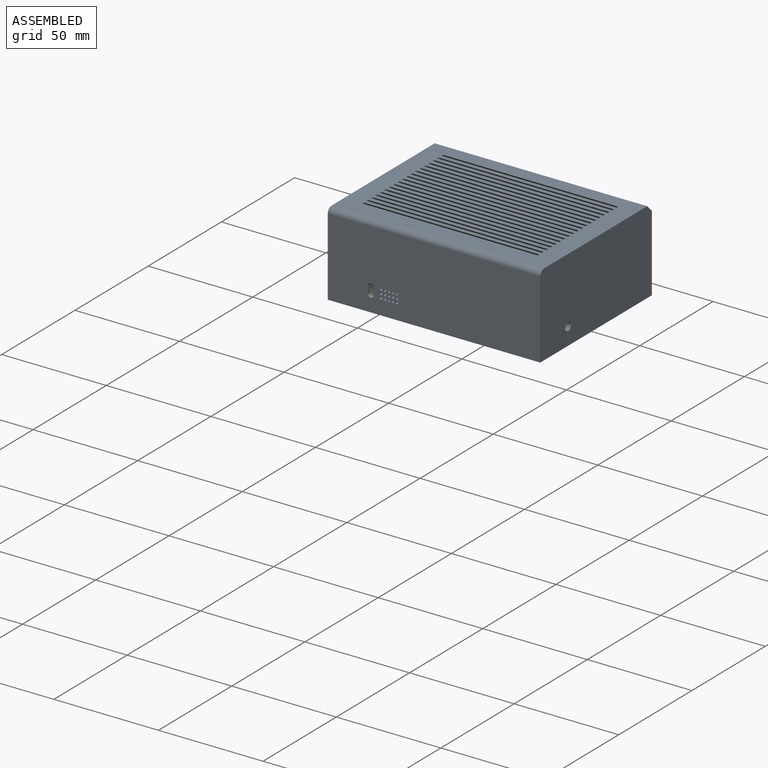
[diagram: assembled view]
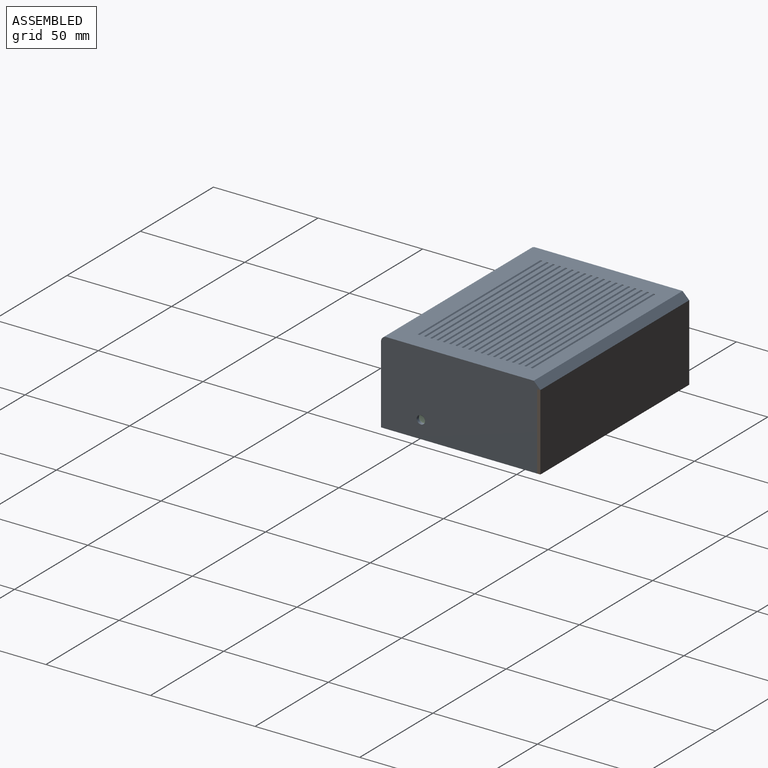
[diagram: assembled view, second angle]
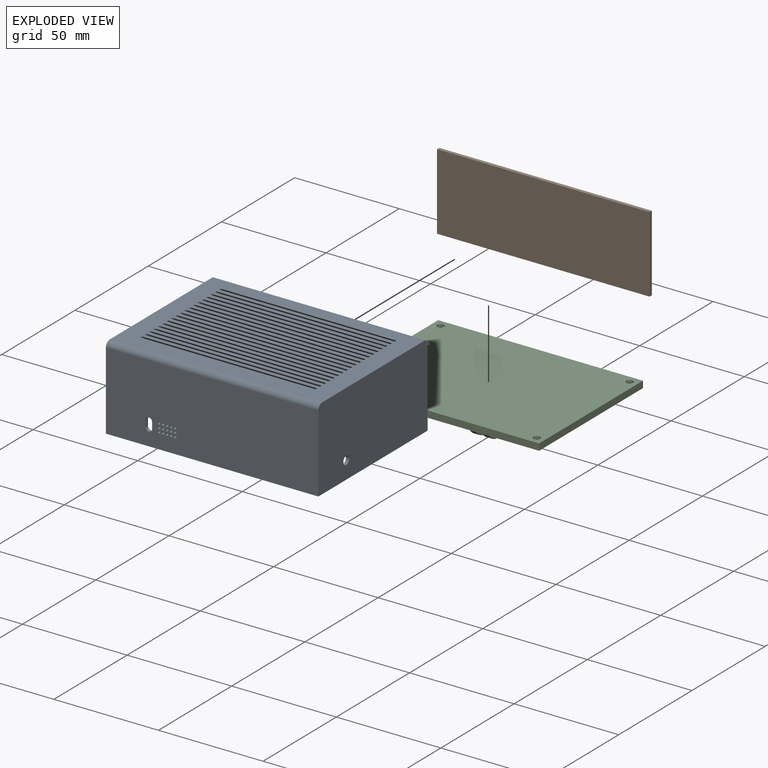
[diagram: exploded view]
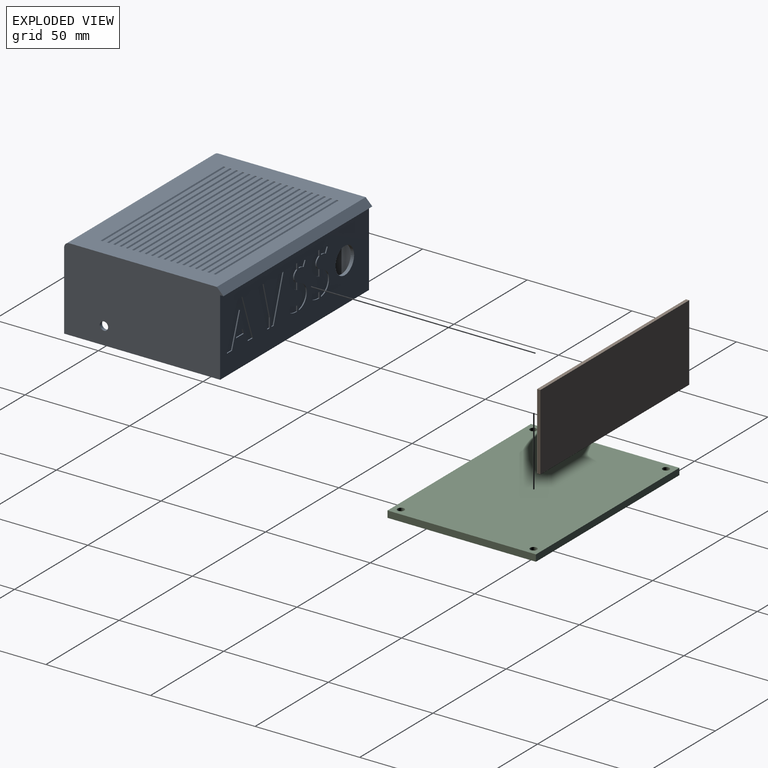
[diagram: exploded view, second angle]
ASSEMBLY  parts=3 mates=6
PART A: 268 faces, bbox 101.6x76.2x39.7 mm
  f0: plane 98.43x36.51mm, normal (0,-1,0), area 3033.7mm2, adj f1,f3,f4,f10,f11,f237,f239,f249
  f1: plane 98.43x71.44mm, normal (0,0,-1), area 5250.4mm2, adj f0,f2,f3,f4,f18,f19,f20,f21
  f2: plane 98.43x36.51mm, normal (0,1,0), area 3124.8mm2, adj f1,f3,f4,f10,f14,f15,f16,f17
  f3: plane 71.44x36.51mm, normal (-1,0,0), area 2162.4mm2, adj f0,f1,f2,f10,f13,f241,f245,f248
  f4: plane 71.44x36.51mm, normal (1,0,0), area 2175mm2, adj f0,f1,f2,f10,f230,f233,f235,f239
  f5: plane 101.6x36.51mm, normal (0,1,0), area 3103mm2, adj f6,f7,f10,f11,f12,f96,f97,f98
  f6: plane 76.2x39.69mm, normal (-1,0,0), area 2959.8mm2, adj f5,f8,f9,f10,f12,f94,f95
  f7: plane 76.2x39.69mm, normal (1,0,0), area 2947.2mm2, adj f5,f8,f9,f10,f12,f13,f94,f95
  f8: plane 101.6x70.49mm, normal (0,0,1), area 5568.7mm2, adj f6,f7,f18,f19,f20,f21,f22,f23
  f9: plane 101.6x37.15mm, normal (0,-1,0), area 3738.6mm2, adj f6,f7,f10,f14,f15,f16,f17,f94
  f10: plane 101.6x74.61mm, normal (0,0,-1), area 549.4mm2, adj f0,f2,f3,f4,f5,f6,f7,f9
  f11: cylinder r=6.35mm len=12.7mm, axis (0,1,0), area 63.3mm2, adj f0,f5
  f12: plane 101.6x1.59mm, normal (0,0,-1), area 161.3mm2, adj f5,f6,f7,f95
  f13: cylinder r=2mm len=4mm, axis (1,0,0), area 19.9mm2, adj f3,f7
  f14: plane 3.05x1.59mm, normal (-1,0,0), area 4.8mm2, adj f2,f9,f15,f17
  f15: cylinder r=1.52mm len=3.05mm, axis (0,-1,0), area 7.6mm2, adj f2,f9,f14,f16
  f16: plane 3.05x1.59mm, normal (1,0,0), area 4.8mm2, adj f2,f9,f15,f17
  f17: cylinder r=1.52mm len=3.05mm, axis (0,-1,0), area 7.6mm2, adj f2,f9,f14,f16
  f18: plane 83.82x3.18mm, normal (0,0.71,0.71), area 376.4mm2, adj f1,f8,f20,f21
  f19: plane 83.82x3.18mm, normal (0,-0.71,-0.71), area 376.4mm2, adj f1,f8,f20,f21
  f20: plane 4.18x3.18mm, normal (1,0,0), area 3.2mm2, adj f1,f8,f18,f19
  f21: plane 4.18x3.18mm, normal (-1,0,0), area 3.2mm2, adj f1,f8,f18,f19
  f22: plane 83.82x3.18mm, normal (0,0.71,0.71), area 376.4mm2, adj f1,f8,f24,f25
  f23: plane 83.82x3.18mm, normal (0,-0.71,-0.71), area 376.4mm2, adj f1,f8,f24,f25
  f24: plane 4.18x3.18mm, normal (1,0,0), area 3.2mm2, adj f1,f8,f22,f23
  f25: plane 4.18x3.18mm, normal (-1,0,0), area 3.2mm2, adj f1,f8,f22,f23
  f26: plane 83.82x3.18mm, normal (0,0.71,0.71), area 376.4mm2, adj f1,f8,f28,f29
  f27: plane 83.82x3.18mm, normal (0,-0.71,-0.71), area 376.4mm2, adj f1,f8,f28,f29
  f28: plane 4.18x3.18mm, normal (1,0,0), area 3.2mm2, adj f1,f8,f26,f27
  f29: plane 4.18x3.18mm, normal (-1,0,0), area 3.2mm2, adj f1,f8,f26,f27
  f30: plane 83.82x3.18mm, normal (0,0.71,0.71), area 376.4mm2, adj f1,f8,f32,f33
  f31: plane 83.82x3.18mm, normal (0,-0.71,-0.71), area 376.4mm2, adj f1,f8,f32,f33
  f32: plane 4.18x3.18mm, normal (1,0,0), area 3.2mm2, adj f1,f8,f30,f31
  f33: plane 4.18x3.18mm, normal (-1,0,0), area 3.2mm2, adj f1,f8,f30,f31
  f34: plane 83.82x3.18mm, normal (0,0.71,0.71), area 376.4mm2, adj f1,f8,f36,f37
  f35: plane 83.82x3.18mm, normal (0,-0.71,-0.71), area 376.4mm2, adj f1,f8,f36,f37
  f36: plane 4.18x3.18mm, normal (1,0,0), area 3.2mm2, adj f1,f8,f34,f35
  f37: plane 4.18x3.18mm, normal (-1,0,0), area 3.2mm2, adj f1,f8,f34,f35
  f38: plane 83.82x3.18mm, normal (0,0.71,0.71), area 376.4mm2, adj f1,f8,f40,f41
  f39: plane 83.82x3.18mm, normal (0,-0.71,-0.71), area 376.4mm2, adj f1,f8,f40,f41
  f40: plane 4.18x3.18mm, normal (1,0,0), area 3.2mm2, adj f1,f8,f38,f39
  f41: plane 4.18x3.18mm, normal (-1,0,0), area 3.2mm2, adj f1,f8,f38,f39
  f42: plane 83.82x3.18mm, normal (0,0.71,0.71), area 376.4mm2, adj f1,f8,f44,f45
  f43: plane 83.82x3.18mm, normal (0,-0.71,-0.71), area 376.4mm2, adj f1,f8,f44,f45
  f44: plane 4.18x3.18mm, normal (1,0,0), area 3.2mm2, adj f1,f8,f42,f43
  f45: plane 4.18x3.18mm, normal (-1,0,0), area 3.2mm2, adj f1,f8,f42,f43
  f46: plane 83.82x3.18mm, normal (0,0.71,0.71), area 376.4mm2, adj f1,f8,f48,f49
  f47: plane 83.82x3.18mm, normal (0,-0.71,-0.71), area 376.4mm2, adj f1,f8,f48,f49
  f48: plane 4.18x3.18mm, normal (1,0,0), area 3.2mm2, adj f1,f8,f46,f47
  f49: plane 4.18x3.18mm, normal (-1,0,0), area 3.2mm2, adj f1,f8,f46,f47
  f50: plane 83.82x3.18mm, normal (0,0.71,0.71), area 376.4mm2, adj f1,f8,f52,f53
  f51: plane 83.82x3.18mm, normal (0,-0.71,-0.71), area 376.4mm2, adj f1,f8,f52,f53
  f52: plane 4.18x3.18mm, normal (1,0,0), area 3.2mm2, adj f1,f8,f50,f51
  f53: plane 4.18x3.18mm, normal (-1,0,0), area 3.2mm2, adj f1,f8,f50,f51
  f54: plane 83.82x3.18mm, normal (0,0.71,0.71), area 376.4mm2, adj f1,f8,f56,f57
  f55: plane 83.82x3.18mm, normal (0,-0.71,-0.71), area 376.4mm2, adj f1,f8,f56,f57
  f56: plane 4.18x3.18mm, normal (1,0,0), area 3.2mm2, adj f1,f8,f54,f55
  f57: plane 4.18x3.18mm, normal (-1,0,0), area 3.2mm2, adj f1,f8,f54,f55
  f58: plane 83.82x3.18mm, normal (0,0.71,0.71), area 376.4mm2, adj f1,f8,f60,f61
  f59: plane 83.82x3.18mm, normal (0,-0.71,-0.71), area 376.4mm2, adj f1,f8,f60,f61
  f60: plane 4.18x3.18mm, normal (1,0,0), area 3.2mm2, adj f1,f8,f58,f59
  f61: plane 4.18x3.18mm, normal (-1,0,0), area 3.2mm2, adj f1,f8,f58,f59
  f62: plane 83.82x3.18mm, normal (0,0.71,0.71), area 376.4mm2, adj f1,f8,f64,f65
  f63: plane 83.82x3.18mm, normal (0,-0.71,-0.71), area 376.4mm2, adj f1,f8,f64,f65
  f64: plane 4.18x3.18mm, normal (1,0,0), area 3.2mm2, adj f1,f8,f62,f63
  f65: plane 4.18x3.18mm, normal (-1,0,0), area 3.2mm2, adj f1,f8,f62,f63
  f66: plane 83.82x3.18mm, normal (0,0.71,0.71), area 376.4mm2, adj f1,f8,f68,f69
  f67: plane 83.82x3.18mm, normal (0,-0.71,-0.71), area 376.4mm2, adj f1,f8,f68,f69
  f68: plane 4.18x3.18mm, normal (1,0,0), area 3.2mm2, adj f1,f8,f66,f67
  f69: plane 4.18x3.18mm, normal (-1,0,0), area 3.2mm2, adj f1,f8,f66,f67
  f70: plane 83.82x3.18mm, normal (0,0.71,0.71), area 376.4mm2, adj f1,f8,f72,f73
  f71: plane 83.82x3.18mm, normal (0,-0.71,-0.71), area 376.4mm2, adj f1,f8,f72,f73
  f72: plane 4.18x3.18mm, normal (1,0,0), area 3.2mm2, adj f1,f8,f70,f71
  f73: plane 4.18x3.18mm, normal (-1,0,0), area 3.2mm2, adj f1,f8,f70,f71
  f74: plane 83.82x3.18mm, normal (0,0.71,0.71), area 376.4mm2, adj f1,f8,f76,f77
  f75: plane 83.82x3.18mm, normal (0,-0.71,-0.71), area 376.4mm2, adj f1,f8,f76,f77
  f76: plane 4.18x3.18mm, normal (1,0,0), area 3.2mm2, adj f1,f8,f74,f75
  f77: plane 4.18x3.18mm, normal (-1,0,0), area 3.2mm2, adj f1,f8,f74,f75
  f78: plane 83.82x3.18mm, normal (0,0.71,0.71), area 376.4mm2, adj f1,f8,f80,f81
  f79: plane 83.82x3.18mm, normal (0,-0.71,-0.71), area 376.4mm2, adj f1,f8,f80,f81
  f80: plane 4.18x3.18mm, normal (1,0,0), area 3.2mm2, adj f1,f8,f78,f79
  f81: plane 4.18x3.18mm, normal (-1,0,0), area 3.2mm2, adj f1,f8,f78,f79
  f82: plane 83.82x3.18mm, normal (0,0.71,0.71), area 376.4mm2, adj f1,f8,f84,f85
  f83: plane 83.82x3.18mm, normal (0,-0.71,-0.71), area 376.4mm2, adj f1,f8,f84,f85
  f84: plane 4.18x3.18mm, normal (1,0,0), area 3.2mm2, adj f1,f8,f82,f83
  f85: plane 4.18x3.18mm, normal (-1,0,0), area 3.2mm2, adj f1,f8,f82,f83
  f86: plane 83.82x3.18mm, normal (0,0.71,0.71), area 376.4mm2, adj f1,f8,f88,f89
  f87: plane 83.82x3.18mm, normal (0,-0.71,-0.71), area 376.4mm2, adj f1,f8,f88,f89
  f88: plane 4.18x3.18mm, normal (1,0,0), area 3.2mm2, adj f1,f8,f86,f87
  f89: plane 4.18x3.18mm, normal (-1,0,0), area 3.2mm2, adj f1,f8,f86,f87
  f90: plane 83.82x3.18mm, normal (0,0.71,0.71), area 376.4mm2, adj f1,f8,f92,f93
  f91: plane 83.82x3.18mm, normal (0,-0.71,-0.71), area 376.4mm2, adj f1,f8,f92,f93
  f92: plane 4.18x3.18mm, normal (1,0,0), area 3.2mm2, adj f1,f8,f90,f91
  f93: plane 4.18x3.18mm, normal (-1,0,0), area 3.2mm2, adj f1,f8,f90,f91
  f94: cylinder r=2.54mm len=101.6mm, axis (1,0,0), area 405.4mm2, adj f6,f7,f8,f9
  f95: plane 101.6x3.18mm, normal (0,0.71,0.71), area 456.2mm2, adj f6,f7,f8,f12
  f96: plane 20.6x7.17mm, normal (0.94,0,-0.33), area 10.9mm2, adj f5,f97,f102,f103
  f97: plane 3.33x0.5mm, normal (0,0,-1), area 1.7mm2, adj f5,f96,f98,f103
  f98: plane 20.6x7.22mm, normal (-0.94,0,-0.33), area 10.9mm2, adj f5,f97,f99,f103
  f99: plane 3.5x0.5mm, normal (0,0,1), area 1.7mm2, adj f5,f98,f100,f103
  f100: plane 15.45x5.4mm, normal (0.94,0,0.33), area 8.2mm2, adj f5,f99,f101,f103
  f101: plane 15.45x5.35mm, normal (-0.95,0,0.33), area 8.2mm2, adj f5,f100,f102,f103
  f102: plane 3.47x0.5mm, normal (0,0,1), area 1.7mm2, adj f5,f96,f101,f103
  f103: plane 20.6x17.72mm, normal (0,1,0), area 133.8mm2, adj f96,f97,f98,f99,f100,f101,f102
  f104: plane 3.28x0.5mm, normal (-1,0,0), area 1.6mm2, adj f5,f105,f116,f117
  f105: extruded ~1.65x1.2mm, area 1mm2, adj f5,f104,f106,f117
  f106: extruded ~1.62x0.64mm, area 0.9mm2, adj f5,f105,f107,f117
  f107: extruded ~3.05x2.29mm, area 2.1mm2, adj f5,f106,f108,f117
  f108: plane 2.69x0.5mm, normal (-1,0,0), area 1.3mm2, adj f5,f107,f109,f117
  f109: extruded ~2.29x0.7mm, area 1.2mm2, adj f5,f108,f110,f117
  f110: extruded ~1.7x1.3mm, area 1.1mm2, adj f5,f109,f111,f117
  f111: extruded ~1.72x1.06mm, area 1mm2, adj f5,f110,f112,f117
  f112: extruded ~1.96x0.5mm, area 1mm2, adj f5,f111,f113,f117
  f113: extruded ~2.43x0.5mm, area 1.3mm2, adj f5,f112,f114,f117
  f114: extruded ~1.66x1.29mm, area 1.1mm2, adj f5,f113,f115,f117
  f115: extruded ~1.75x1.16mm, area 1.1mm2, adj f5,f114,f116,f117
  f116: extruded ~1.89x0.9mm, area 1mm2, adj f5,f104,f115,f117
  f117: plane 11.84x5.43mm, normal (0,1,0), area 37.9mm2, adj f104,f105,f106,f107,f108,f109,f110,f111
  f118: plane 2.41x0.59mm, normal (-0.97,0,-0.24), area 1.2mm2, adj f5,f119,f129,f130
  f119: extruded ~1.14x0.71mm, area 0.7mm2, adj f5,f118,f120,f130
  f120: extruded ~1.38x0.5mm, area 0.7mm2, adj f5,f119,f121,f130
  f121: extruded ~1.44x0.5mm, area 0.7mm2, adj f5,f120,f122,f130
  f122: extruded ~1.39x0.5mm, area 0.7mm2, adj f5,f121,f123,f130
  f123: plane 0.5x0.06mm, normal (0,0,1), area 0mm2, adj f5,f122,f124,f130
  f124: plane 2.66x0.5mm, normal (1,0,0), area 1.3mm2, adj f5,f123,f125,f130
  f125: plane 0.5x0.09mm, normal (0,0,-1), area 0mm2, adj f5,f124,f126,f130
  f126: extruded ~1.2x0.5mm, area 0.6mm2, adj f5,f125,f127,f130
  f127: extruded ~1.29x0.5mm, area 0.7mm2, adj f5,f126,f128,f130
  f128: extruded ~1.25x0.5mm, area 0.7mm2, adj f5,f127,f129,f130
  f129: extruded ~0.99x0.5mm, area 0.5mm2, adj f5,f118,f128,f130
  f130: plane 5.41x3.89mm, normal (0,1,0), area 14.3mm2, adj f118,f119,f120,f121,f122,f123,f124,f125
  f131: extruded ~2.21x0.5mm, area 1.1mm2, adj f5,f132,f144,f145
  f132: extruded ~1.62x1.25mm, area 1mm2, adj f5,f131,f133,f145
  f133: extruded ~1.68x1.22mm, area 1mm2, adj f5,f132,f134,f145
  f134: extruded ~1.85x0.97mm, area 1mm2, adj f5,f133,f135,f145
  f135: plane 3.19x0.5mm, normal (1,0,0), area 1.6mm2, adj f5,f134,f136,f145
  f136: extruded ~1.48x1.17mm, area 1mm2, adj f5,f135,f137,f145
  f137: extruded ~1.76x0.59mm, area 1mm2, adj f5,f136,f138,f145
  f138: extruded ~1.55x0.59mm, area 0.8mm2, adj f5,f137,f139,f145
  f139: extruded ~1.48x1.08mm, area 0.9mm2, adj f5,f138,f140,f145
  f140: plane 2.94x0.5mm, normal (1,0,0), area 1.5mm2, adj f5,f139,f141,f145
  f141: extruded ~2.03x0.58mm, area 1.1mm2, adj f5,f140,f142,f145
  f142: extruded ~1.68x1.18mm, area 1mm2, adj f5,f141,f143,f145
  f143: extruded ~1.72x1.13mm, area 1mm2, adj f5,f142,f144,f145
  f144: extruded ~2.21x0.5mm, area 1.1mm2, adj f5,f131,f143,f145
  f145: plane 11.7x5.26mm, normal (0,1,0), area 37.3mm2, adj f131,f132,f133,f134,f135,f136,f137,f138
  f146: plane 3.75x0.5mm, normal (0,0,-1), area 1.9mm2, adj f5,f147,f149,f150
  f147: plane 2.27x0.78mm, normal (-0.95,0,-0.33), area 1.2mm2, adj f5,f146,f148,f150
  f148: plane 5.35x0.5mm, normal (0,0,1), area 2.7mm2, adj f5,f147,f149,f150
  f149: plane 2.27x0.81mm, normal (0.94,0,-0.34), area 1.2mm2, adj f5,f146,f148,f150
  f150: plane 5.35x2.27mm, normal (0,1,0), area 10.3mm2, adj f146,f147,f148,f149
  f151: plane 20.74x6.41mm, normal (-0.96,0,0.3), area 10.9mm2, adj f5,f152,f155,f156
  f152: plane 1.76x0.5mm, normal (0,0,1), area 0.9mm2, adj f5,f151,f153,f156
  f153: plane 4.56x0.5mm, normal (1,0,0), area 2.3mm2, adj f5,f152,f154,f156
  f154: plane 16.18x4.34mm, normal (0.97,0,-0.26), area 8.4mm2, adj f5,f153,f155,f156
  f155: plane 3.83x0.5mm, normal (0,0,-1), area 1.9mm2, adj f5,f151,f154,f156
  f156: plane 20.74x8.17mm, normal (0,1,0), area 68mm2, adj f151,f152,f153,f154,f155
  f157: plane 15.28x4.37mm, normal (-0.96,0,-0.27), area 7.9mm2, adj f5,f158,f161,f162
  f158: plane 5.46x0.5mm, normal (-1,0,0), area 2.7mm2, adj f5,f157,f159,f162
  f159: plane 1.46x0.5mm, normal (0,0,1), area 0.7mm2, adj f5,f158,f160,f162
  f160: plane 20.74x6.72mm, normal (0.95,0,0.31), area 10.9mm2, adj f5,f159,f161,f162
  f161: plane 3.81x0.5mm, normal (0,0,-1), area 1.9mm2, adj f5,f157,f160,f162
  f162: plane 20.74x8.17mm, normal (0,1,0), area 66.5mm2, adj f157,f158,f159,f160,f161
  f163: extruded ~0.5x0.28mm, area 0.2mm2, adj f5,f164,f173,f174
  f164: extruded ~0.63x0.5mm, area 0.4mm2, adj f5,f163,f165,f174
  f165: extruded ~0.81x0.5mm, area 0.5mm2, adj f5,f164,f166,f174
  f166: extruded ~0.8x0.5mm, area 0.4mm2, adj f5,f165,f167,f174
  f167: extruded ~2.06x0.74mm, area 1.1mm2, adj f5,f166,f168,f174
  f168: extruded ~2.51x0.5mm, area 1.3mm2, adj f5,f167,f169,f174
  f169: plane 2.83x0.5mm, normal (-1,0,0), area 1.4mm2, adj f5,f168,f170,f174
  f170: extruded ~1.43x0.5mm, area 0.7mm2, adj f5,f169,f171,f174
  f171: extruded ~0.92x0.5mm, area 0.5mm2, adj f5,f170,f172,f174
  f172: extruded ~0.56x0.5mm, area 0.3mm2, adj f5,f171,f173,f174
  f173: extruded ~0.5x0.34mm, area 0.2mm2, adj f5,f163,f172,f174
  f174: plane 4.56x3.52mm, normal (0,1,0), area 11.3mm2, adj f163,f164,f165,f166,f167,f168,f169,f170
  f175: extruded ~2.21x0.5mm, area 1.1mm2, adj f5,f176,f188,f189
  f176: extruded ~1.62x1.25mm, area 1mm2, adj f5,f175,f177,f189
  f177: extruded ~1.68x1.22mm, area 1mm2, adj f5,f176,f178,f189
  f178: extruded ~1.85x0.97mm, area 1mm2, adj f5,f177,f179,f189
  f179: plane 3.19x0.5mm, normal (1,0,0), area 1.6mm2, adj f5,f178,f180,f189
  f180: extruded ~1.48x1.17mm, area 1mm2, adj f5,f179,f181,f189
  f181: extruded ~1.76x0.59mm, area 1mm2, adj f5,f180,f182,f189
  f182: extruded ~1.55x0.59mm, area 0.8mm2, adj f5,f181,f183,f189
  f183: extruded ~1.48x1.08mm, area 0.9mm2, adj f5,f182,f184,f189
  f184: plane 2.94x0.5mm, normal (1,0,0), area 1.5mm2, adj f5,f183,f185,f189
  f185: extruded ~2.03x0.58mm, area 1.1mm2, adj f5,f184,f186,f189
  f186: extruded ~1.68x1.18mm, area 1mm2, adj f5,f185,f187,f189
  f187: extruded ~1.72x1.13mm, area 1mm2, adj f5,f186,f188,f189
  f188: extruded ~2.21x0.5mm, area 1.1mm2, adj f5,f175,f187,f189
  f189: plane 11.7x5.26mm, normal (0,1,0), area 37.3mm2, adj f175,f176,f177,f178,f179,f180,f181,f182
  f190: plane 2.41x0.59mm, normal (-0.97,0,-0.24), area 1.2mm2, adj f5,f191,f201,f202
  f191: extruded ~1.14x0.71mm, area 0.7mm2, adj f5,f190,f192,f202
  f192: extruded ~1.38x0.5mm, area 0.7mm2, adj f5,f191,f193,f202
  f193: extruded ~1.44x0.5mm, area 0.7mm2, adj f5,f192,f194,f202
  f194: extruded ~1.39x0.5mm, area 0.7mm2, adj f5,f193,f195,f202
  f195: plane 0.5x0.06mm, normal (0,0,1), area 0mm2, adj f5,f194,f196,f202
  f196: plane 2.66x0.5mm, normal (1,0,0), area 1.3mm2, adj f5,f195,f197,f202
  f197: plane 0.5x0.09mm, normal (0,0,-1), area 0mm2, adj f5,f196,f198,f202
  f198: extruded ~1.2x0.5mm, area 0.6mm2, adj f5,f197,f199,f202
  f199: extruded ~1.29x0.5mm, area 0.7mm2, adj f5,f198,f200,f202
  f200: extruded ~1.25x0.5mm, area 0.7mm2, adj f5,f199,f201,f202
  f201: extruded ~0.99x0.5mm, area 0.5mm2, adj f5,f190,f200,f202
  f202: plane 5.41x3.89mm, normal (0,1,0), area 14.3mm2, adj f190,f191,f192,f193,f194,f195,f196,f197
  f203: plane 3.28x0.5mm, normal (-1,0,0), area 1.6mm2, adj f5,f204,f215,f216
  f204: extruded ~1.65x1.2mm, area 1mm2, adj f5,f203,f205,f216
  f205: extruded ~1.62x0.64mm, area 0.9mm2, adj f5,f204,f206,f216
  f206: extruded ~3.05x2.29mm, area 2.1mm2, adj f5,f205,f207,f216
  f207: plane 2.69x0.5mm, normal (-1,0,0), area 1.3mm2, adj f5,f206,f208,f216
  f208: extruded ~2.29x0.7mm, area 1.2mm2, adj f5,f207,f209,f216
  f209: extruded ~1.7x1.3mm, area 1.1mm2, adj f5,f208,f210,f216
  f210: extruded ~1.72x1.06mm, area 1mm2, adj f5,f209,f211,f216
  f211: extruded ~1.96x0.5mm, area 1mm2, adj f5,f210,f212,f216
  f212: extruded ~2.43x0.5mm, area 1.3mm2, adj f5,f211,f213,f216
  f213: extruded ~1.66x1.29mm, area 1.1mm2, adj f5,f212,f214,f216
  f214: extruded ~1.75x1.16mm, area 1.1mm2, adj f5,f213,f215,f216
  f215: extruded ~1.89x0.9mm, area 1mm2, adj f5,f203,f214,f216
  f216: plane 11.84x5.43mm, normal (0,1,0), area 37.9mm2, adj f203,f204,f205,f206,f207,f208,f209,f210
  f217: extruded ~0.5x0.28mm, area 0.2mm2, adj f5,f218,f227,f228
  f218: extruded ~0.63x0.5mm, area 0.4mm2, adj f5,f217,f219,f228
  f219: extruded ~0.81x0.5mm, area 0.5mm2, adj f5,f218,f220,f228
  f220: extruded ~0.8x0.5mm, area 0.4mm2, adj f5,f219,f221,f228
  f221: extruded ~2.06x0.74mm, area 1.1mm2, adj f5,f220,f222,f228
  f222: extruded ~2.51x0.5mm, area 1.3mm2, adj f5,f221,f223,f228
  f223: plane 2.83x0.5mm, normal (-1,0,0), area 1.4mm2, adj f5,f222,f224,f228
  f224: extruded ~1.43x0.5mm, area 0.7mm2, adj f5,f223,f225,f228
  f225: extruded ~0.92x0.5mm, area 0.5mm2, adj f5,f224,f226,f228
  f226: extruded ~0.56x0.5mm, area 0.3mm2, adj f5,f225,f227,f228
  f227: extruded ~0.5x0.34mm, area 0.2mm2, adj f5,f217,f226,f228
  f228: plane 4.56x3.52mm, normal (0,1,0), area 11.3mm2, adj f217,f218,f219,f220,f221,f222,f223,f224
  f229: cylinder r=3mm len=30.96mm, axis (0,0,-1), area 145.9mm2, adj f1,f230,f231,f233
  f230: plane 30.96x4mm, normal (0,1,0), area 123.8mm2, adj f1,f4,f229,f233
  f231: plane 30.96x4mm, normal (1,0,0), area 123.8mm2, adj f1,f2,f229,f233
  f232: cylinder r=1.24mm len=30.96mm, axis (0,0,-1), area 240.6mm2, adj f233,f234
  f233: plane 7x7mm, normal (0,0,-1), area 42.3mm2, adj f2,f4,f229,f230,f231,f232
  f234: plane 2.47x2.47mm, normal (0,0,-1), area 4.8mm2, adj f232
  f235: plane 30.96x4mm, normal (0,-1,0), area 123.8mm2, adj f1,f4,f236,f239
  f236: cylinder r=3mm len=30.96mm, axis (0,0,-1), area 145.9mm2, adj f1,f235,f237,f239
  f237: plane 30.96x4mm, normal (1,0,0), area 123.8mm2, adj f0,f1,f236,f239
  f238: cylinder r=1.24mm len=30.96mm, axis (0,0,-1), area 240.6mm2, adj f239,f240
  f239: plane 7x7mm, normal (0,0,-1), area 42.3mm2, adj f0,f4,f235,f236,f237,f238
  f240: plane 2.47x2.47mm, normal (0,0,-1), area 4.8mm2, adj f238
  f241: plane 30.96x4mm, normal (0,1,0), area 123.8mm2, adj f1,f3,f242,f245
  f242: cylinder r=3mm len=30.96mm, axis (0,0,-1), area 145.9mm2, adj f1,f241,f243,f245
  f243: plane 30.96x4mm, normal (-1,0,0), area 123.8mm2, adj f1,f2,f242,f245
  f244: cylinder r=1.24mm len=30.96mm, axis (0,0,-1), area 240.6mm2, adj f245,f246
  f245: plane 7x7mm, normal (0,0,-1), area 42.3mm2, adj f2,f3,f241,f242,f243,f244
  f246: plane 2.47x2.47mm, normal (0,0,-1), area 4.8mm2, adj f244
  f247: cylinder r=3mm len=30.96mm, axis (0,0,-1), area 145.9mm2, adj f1,f248,f249,f251
  f248: plane 30.96x4mm, normal (0,-1,0), area 123.8mm2, adj f1,f3,f247,f251
  f249: plane 30.96x4mm, normal (-1,0,0), area 123.8mm2, adj f0,f1,f247,f251
  f250: cylinder r=1.24mm len=30.96mm, axis (0,0,-1), area 240.6mm2, adj f251,f252
  f251: plane 7x7mm, normal (0,0,-1), area 42.3mm2, adj f0,f3,f247,f248,f249,f250
  f252: plane 2.47x2.47mm, normal (0,0,-1), area 4.8mm2, adj f250
  f253: cylinder r=0.64mm len=1.59mm, axis (0,-1,0), area 6.3mm2, adj f2,f9
  f254: cylinder r=0.64mm len=1.59mm, axis (0,-1,0), area 6.3mm2, adj f2,f9
  f255: cylinder r=0.64mm len=1.59mm, axis (0,-1,0), area 6.3mm2, adj f2,f9
  f256: cylinder r=0.64mm len=1.59mm, axis (0,-1,0), area 6.3mm2, adj f2,f9
  f257: cylinder r=0.64mm len=1.59mm, axis (0,-1,0), area 6.3mm2, adj f2,f9
  f258: cylinder r=0.64mm len=1.59mm, axis (0,-1,0), area 6.3mm2, adj f2,f9
  f259: cylinder r=0.64mm len=1.59mm, axis (0,-1,0), area 6.3mm2, adj f2,f9
  f260: cylinder r=0.64mm len=1.59mm, axis (0,-1,0), area 6.3mm2, adj f2,f9
  f261: cylinder r=0.64mm len=1.59mm, axis (0,-1,0), area 6.3mm2, adj f2,f9
  f262: cylinder r=0.64mm len=1.59mm, axis (0,-1,0), area 6.3mm2, adj f2,f9
  f263: cylinder r=0.64mm len=1.59mm, axis (0,-1,0), area 6.3mm2, adj f2,f9
  f264: cylinder r=0.64mm len=1.59mm, axis (0,-1,0), area 6.3mm2, adj f2,f9
  f265: cylinder r=0.64mm len=1.59mm, axis (0,-1,0), area 6.3mm2, adj f2,f9
  f266: cylinder r=0.64mm len=1.59mm, axis (0,-1,0), area 6.3mm2, adj f2,f9
  f267: cylinder r=0.64mm len=1.59mm, axis (0,-1,0), area 6.3mm2, adj f2,f9
PART B: 6 faces, bbox 101.6x1.6x36.5 mm
  f0: plane 101.6x36.51mm, normal (0,1,0), area 3709.7mm2, adj f1,f2,f3,f4
  f1: plane 101.6x1.59mm, normal (0,0,-1), area 161.3mm2, adj f0,f2,f4,f5
  f2: plane 36.51x1.59mm, normal (-1,0,0), area 58mm2, adj f0,f1,f3,f5
  f3: plane 101.6x1.59mm, normal (0,0,1), area 161.3mm2, adj f0,f2,f4,f5
  f4: plane 36.51x1.59mm, normal (1,0,0), area 58mm2, adj f0,f1,f3,f5
  f5: plane 101.6x36.51mm, normal (0,-1,0), area 3709.7mm2, adj f1,f2,f3,f4
PART C: 26 faces, bbox 97.9x70.9x23.2 mm
  f0: plane 97.93x70.94mm, normal (0,0,-1), area 6664.8mm2, adj f1,f2,f3,f4,f5,f6,f7,f8
  f1: plane 25x20mm, normal (1,0,0), area 287.1mm2, adj f0,f18,f19,f24,f25
  f2: plane 25x20mm, normal (1,0,0), area 287.1mm2, adj f0,f20,f21,f22,f23
  f3: plane 25x20mm, normal (-1,0,0), area 287.1mm2, adj f0,f18,f19,f24,f25
  f4: plane 25x20mm, normal (-1,0,0), area 287.1mm2, adj f0,f20,f21,f22,f23
  f5: plane 97.93x3.18mm, normal (0,1,0), area 310.9mm2, adj f0,f6,f8,f9
  f6: plane 70.94x3.18mm, normal (-1,0,0), area 225.2mm2, adj f0,f5,f7,f9
  f7: plane 97.93x3.18mm, normal (0,-1,0), area 310.9mm2, adj f0,f6,f8,f9
  f8: plane 70.94x3.18mm, normal (1,0,0), area 225.2mm2, adj f0,f5,f7,f9
  f9: plane 97.93x70.94mm, normal (0,0,1), area 6913.1mm2, adj f5,f6,f7,f8,f10,f12,f14,f16
  f10: cylinder r=1.63mm len=3.26mm, axis (0,0,-1), area 13.6mm2, adj f9,f11
  f11: cone r=1.63mm half-angle=41deg, axis (0,0,-1), area 37.5mm2, adj f0,f10
  f12: cylinder r=1.63mm len=3.26mm, axis (0,0,-1), area 13.6mm2, adj f9,f13
  f13: cone r=1.63mm half-angle=41deg, axis (0,0,-1), area 37.5mm2, adj f0,f12
  f14: cylinder r=1.63mm len=3.26mm, axis (0,0,-1), area 13.6mm2, adj f9,f15
  f15: cone r=1.63mm half-angle=41deg, axis (0,0,-1), area 37.5mm2, adj f0,f14
  f16: cylinder r=1.63mm len=3.26mm, axis (0,0,-1), area 13.6mm2, adj f9,f17
  f17: cone r=1.63mm half-angle=41deg, axis (0,0,-1), area 37.5mm2, adj f0,f16
  f18: cylinder r=3mm len=6mm, axis (1,0,0), area 56.5mm2, adj f1,f3
  f19: cylinder r=7.5mm len=15mm, axis (1,0,0), area 69.9mm2, adj f1,f3,f24,f25
  f20: cylinder r=3mm len=6mm, axis (1,0,0), area 56.5mm2, adj f2,f4
  f21: cylinder r=7.5mm len=15mm, axis (1,0,0), area 69.9mm2, adj f2,f4,f22,f23
  f22: cylinder r=18.44mm len=12.63mm, axis (-1,0,0), area 41.7mm2, adj f0,f2,f4,f21
  f23: cylinder r=18.44mm len=12.63mm, axis (-1,0,0), area 41.7mm2, adj f0,f2,f4,f21
  f24: cylinder r=18.44mm len=12.63mm, axis (1,0,0), area 41.7mm2, adj f0,f1,f3,f19
  f25: cylinder r=18.44mm len=12.63mm, axis (1,0,0), area 41.7mm2, adj f0,f1,f3,f19
PLACE A t=(-34.42,-14.88,6.95)mm
PLACE B t=(-34.42,-14.88,6.95)mm
PLACE C t=(-34.41,-14.87,16.47)mm
MATE planar B.f5 <-> A.f5  axis (0,-1,0) through (-48.21,31.6,25.2)mm
MATE cylindrical C.f10 <-> A.f229  axis (0,0,-1) through (-93.42,-37.42,8.79)mm
MATE planar B.f2 <-> A.f6  axis (-1,0,0) through (-99.01,32.4,25.2)mm
MATE planar C.f0 <-> A.f10  axis (0,0,-1) through (-48.21,-5.71,6.95)mm
MATE planar B.f3 <-> A.f12  axis (0,0,1) through (-48.21,32.4,43.46)mm
MATE cylindrical C.f14 <-> A.f247  axis (0,0,-1) through (-3,26.02,9.46)mm
